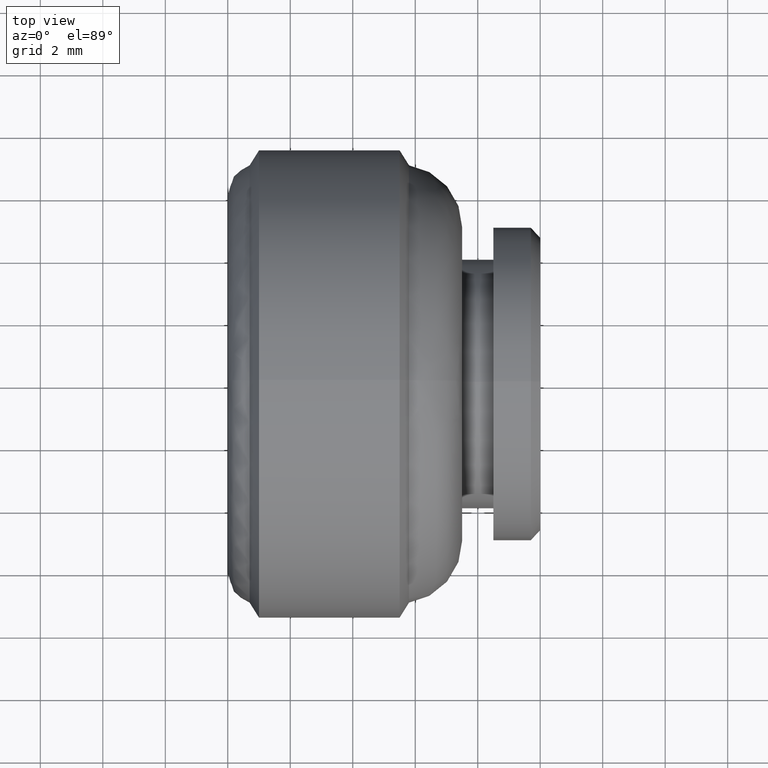
[diagram: clean part render]
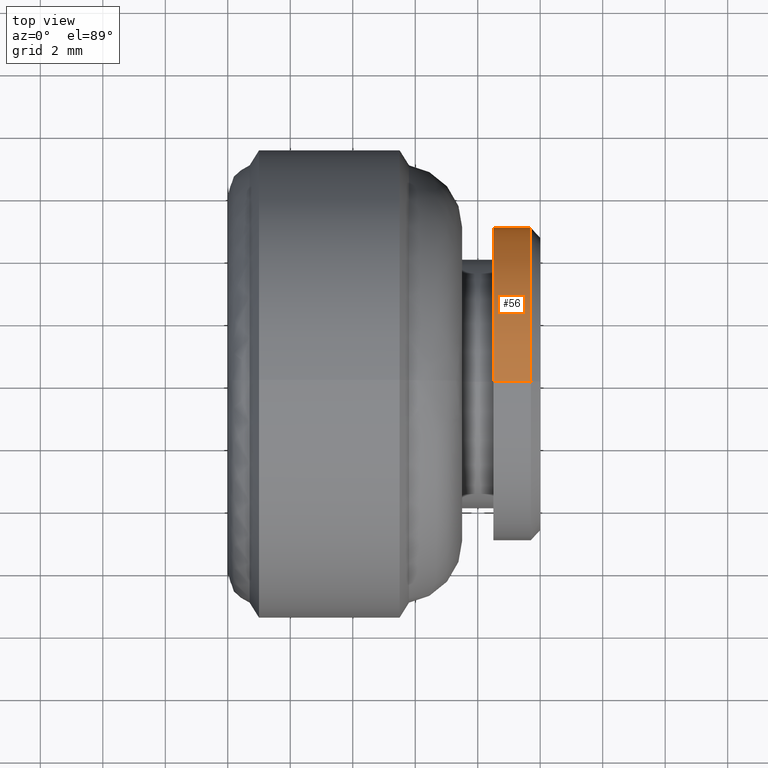
[diagram: same view with one face highlighted and labeled with its STEP entity id]
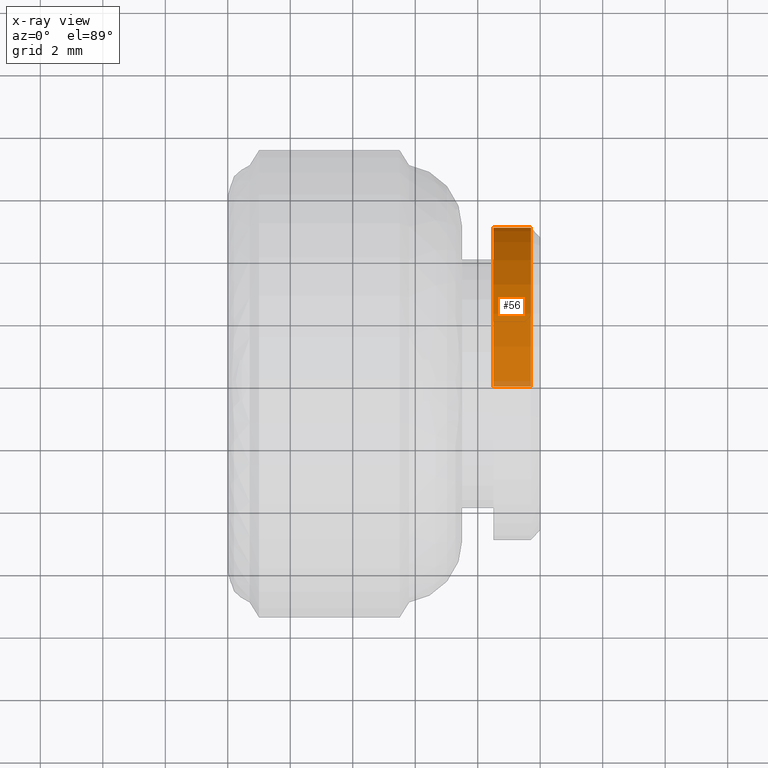
[diagram: x-ray of the same camera — body ghosted, the highlighted face saturated]
A machine part, top view. The second image highlights one B-rep face of the part: STEP entity #56.
The next image is the same camera in x-ray: the body ghosted, the highlighted face saturated — about 3% of this face is hidden behind the body in this view.
In plain terms, the highlighted cylindrical surface (partial cylindrical patch) has radius 5 mm, axis along (1, -0, -0).
Its self-contained STEP definition (entity closure, byte-faithful):
#56=ADVANCED_FACE('',(#234),#233,.T.);
#233=CYLINDRICAL_SURFACE('',#507,5.00000000000E+00);
#234=FACE_OUTER_BOUND('',#508,.T.);
#504=CARTESIAN_POINT('',(0.00000000000E+00,0.00000000000E+00,0.00000000000E+00));
#505=DIRECTION('',(1.00000000000E+00,-0.00000000000E+00,-0.00000000000E+00));
#506=DIRECTION('',(0.00000000000E+00,0.00000000000E+00,-1.00000000000E+00));
#507=AXIS2_PLACEMENT_3D('',#504,#505,#506);
#508=EDGE_LOOP('',(#742,#743,#744,#745));
#742=ORIENTED_EDGE('',*,*,#833,.T.);
#743=ORIENTED_EDGE('',*,*,#834,.F.);
#744=ORIENTED_EDGE('',*,*,#804,.F.);
#745=ORIENTED_EDGE('',*,*,#835,.T.);
#804=EDGE_CURVE('',#898,#899,#900,.T.);
#833=EDGE_CURVE('',#1072,#1071,#1091,.T.);
#834=EDGE_CURVE('',#899,#1071,#1097,.T.);
#835=EDGE_CURVE('',#898,#1072,#1103,.T.);
#898=VERTEX_POINT('',#1267);
#899=VERTEX_POINT('',#1268);
#900=CIRCLE('',#1272,5.00000000000E+00);
#1071=VERTEX_POINT('',#1368);
#1072=VERTEX_POINT('',#1369);
#1091=CIRCLE('',#1381,5.00000000000E+00);
#1097=(BOUNDED_CURVE() B_SPLINE_CURVE(1,(#1382,#1383),.UNSPECIFIED.,.F.,.F.) B_SPLINE_CURVE_WITH_KNOTS((2,2),(8.33333134656E-02,9.16666653270E-01),.UNSPECIFIED.) CURVE() GEOMETRIC_REPRESENTATION_ITEM() RATIONAL_B_SPLINE_CURVE((1.00000000000E+00,1.00000000000E+00)) REPRESENTATION_ITEM('') );
#1103=(BOUNDED_CURVE() B_SPLINE_CURVE(1,(#1384,#1385),.UNSPECIFIED.,.F.,.F.) B_SPLINE_CURVE_WITH_KNOTS((2,2),(8.33333333333E-02,9.16666666667E-01),.UNSPECIFIED.) CURVE() GEOMETRIC_REPRESENTATION_ITEM() RATIONAL_B_SPLINE_CURVE((7.50000000000E-01,7.50000000000E-01)) REPRESENTATION_ITEM('') );
#1267=CARTESIAN_POINT('',(-1.50000000000E+00,0.00000000000E+00,5.00000000000E+00));
#1268=CARTESIAN_POINT('',(-1.50000000000E+00,2.96059473233E-16,-5.00000000000E+00));
#1269=CARTESIAN_POINT('',(-1.50000000000E+00,0.00000000000E+00,0.00000000000E+00));
#1270=DIRECTION('',(-1.00000000000E+00,0.00000000000E+00,0.00000000000E+00));
#1271=DIRECTION('',(0.00000000000E+00,-1.22460635382E-16,1.00000000000E+00));
#1272=AXIS2_PLACEMENT_3D('',#1269,#1270,#1271);
#1368=CARTESIAN_POINT('',(-3.00000000000E-01,2.96059473233E-16,-5.00000000000E+00));
#1369=CARTESIAN_POINT('',(-3.00000000000E-01,0.00000000000E+00,5.00000000000E+00));
#1378=CARTESIAN_POINT('',(-3.00000000000E-01,0.00000000000E+00,0.00000000000E+00));
#1379=DIRECTION('',(-1.00000000000E+00,0.00000000000E+00,0.00000000000E+00));
#1380=DIRECTION('',(0.00000000000E+00,-1.22460635382E-16,1.00000000000E+00));
#1381=AXIS2_PLACEMENT_3D('',#1378,#1379,#1380);
#1382=CARTESIAN_POINT('',(-1.50000002861E+00,0.00000000000E+00,-5.00000000000E+00));
#1383=CARTESIAN_POINT('',(-3.00000019291E-01,0.00000000000E+00,-5.00000000000E+00));
#1384=CARTESIAN_POINT('',(-1.50000000000E+00,-2.96059473233E-16,5.00000000000E+00));
#1385=CARTESIAN_POINT('',(-3.00000000000E-01,-2.96059473233E-16,5.00000000000E+00));